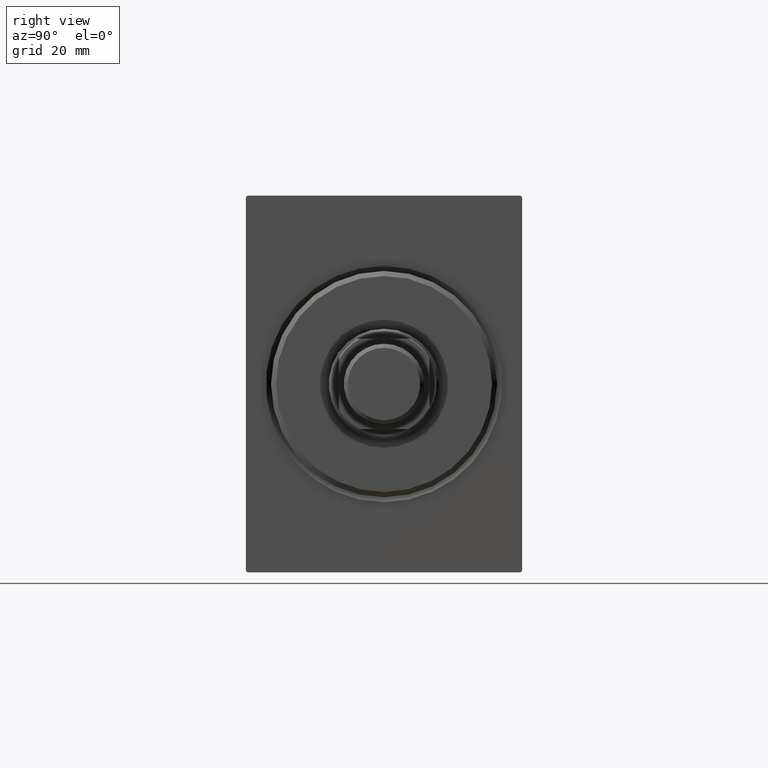
[diagram: clean part render]
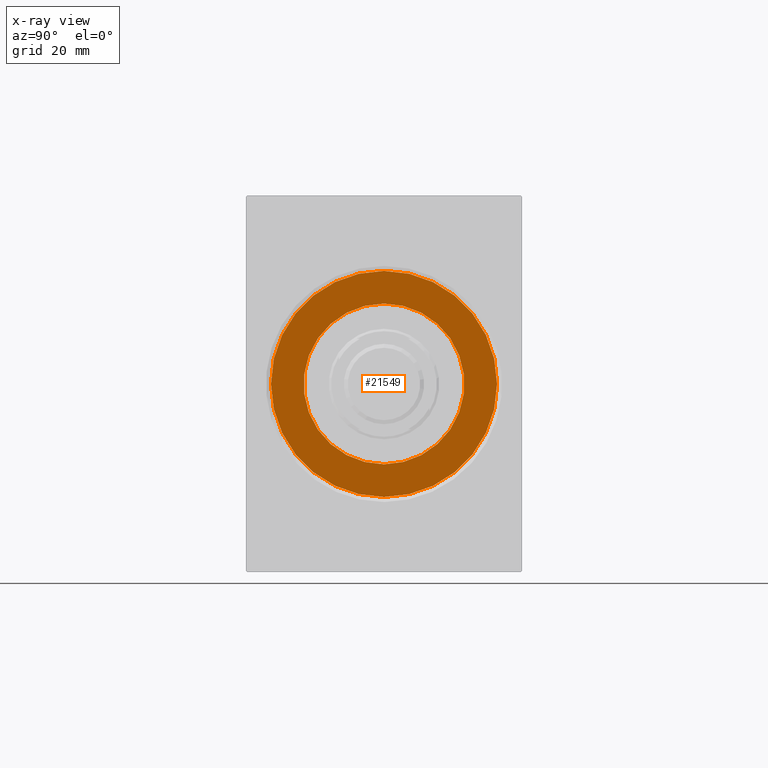
[diagram: x-ray — body ghosted, one internal face saturated and labeled with its STEP entity id]
A machine part, right view, then the same camera in x-ray: the body is ghosted and one INTERNAL B-rep face — a face not visible from any outside direction — is saturated and labeled: STEP entity #21549.
In plain terms, the highlighted planar face has unit normal (1, 0, -0).
Its self-contained STEP definition (entity closure, byte-faithful):
#820 = AXIS2_PLACEMENT_3D ( 'NONE', #10733, #17441, #20501 ) ;
#884 = CIRCLE ( 'NONE', #34071, 22.50000000000000355 ) ;
#966 = VERTEX_POINT ( 'NONE', #6529 ) ;
#2257 = DIRECTION ( 'NONE',  ( -1.000000000000000000, 0.000000000000000000, 0.000000000000000000 ) ) ;
#5884 = CIRCLE ( 'NONE', #25947, 16.00000000000000000 ) ;
#6529 = CARTESIAN_POINT ( 'NONE',  ( 4.999999999999997335, 1.959434878635765131E-15, -16.00000000000000000 ) ) ;
#7396 = ORIENTED_EDGE ( 'NONE', *, *, #30856, .T. ) ;
#8981 = CARTESIAN_POINT ( 'NONE',  ( 4.999999999999997335, 0.000000000000000000, 16.00000000000000000 ) ) ;
#9146 = DIRECTION ( 'NONE',  ( -1.000000000000000000, 0.000000000000000000, 0.000000000000000000 ) ) ;
#10733 = CARTESIAN_POINT ( 'NONE',  ( 5.000000000000000000, 0.000000000000000000, 0.000000000000000000 ) ) ;
#10889 = EDGE_LOOP ( 'NONE', ( #7396, #30539 ) ) ;
#11152 = EDGE_LOOP ( 'NONE', ( #20102, #42525 ) ) ;
#11970 = DIRECTION ( 'NONE',  ( 0.000000000000000000, 0.000000000000000000, 1.000000000000000000 ) ) ;
#15674 = CARTESIAN_POINT ( 'NONE',  ( 4.999999999999997335, 0.000000000000000000, 0.000000000000000000 ) ) ;
#17441 = DIRECTION ( 'NONE',  ( -1.000000000000000000, 0.000000000000000000, 0.000000000000000000 ) ) ;
#17625 = FACE_OUTER_BOUND ( 'NONE', #10889, .T. ) ;
#17844 = FACE_BOUND ( 'NONE', #11152, .T. ) ;
#18265 = DIRECTION ( 'NONE',  ( -1.000000000000000000, 0.000000000000000000, 0.000000000000000000 ) ) ;
#18745 = CARTESIAN_POINT ( 'NONE',  ( 5.000000000000000000, 0.000000000000000000, 0.000000000000000000 ) ) ;
#19534 = CIRCLE ( 'NONE', #820, 22.50000000000000355 ) ;
#20102 = ORIENTED_EDGE ( 'NONE', *, *, #25176, .F. ) ;
#20424 = CARTESIAN_POINT ( 'NONE',  ( 5.000000000000000000, 2.755455298081545172E-15, -22.50000000000000355 ) ) ;
#20501 = DIRECTION ( 'NONE',  ( 0.000000000000000000, 0.000000000000000000, 1.000000000000000000 ) ) ;
#20650 = AXIS2_PLACEMENT_3D ( 'NONE', #38246, #18265, #11970 ) ;
#21549 = ADVANCED_FACE ( 'NONE', ( #17844, #17625 ), #34763, .T. ) ;
#24257 = VERTEX_POINT ( 'NONE', #30749 ) ;
#24721 = VERTEX_POINT ( 'NONE', #8981 ) ;
#25176 = EDGE_CURVE ( 'NONE', #24721, #966, #40867, .T. ) ;
#25947 = AXIS2_PLACEMENT_3D ( 'NONE', #15674, #28926, #26083 ) ;
#26083 = DIRECTION ( 'NONE',  ( 0.000000000000000000, 0.000000000000000000, 1.000000000000000000 ) ) ;
#26957 = VERTEX_POINT ( 'NONE', #20424 ) ;
#28825 = EDGE_CURVE ( 'NONE', #26957, #24257, #19534, .T. ) ;
#28926 = DIRECTION ( 'NONE',  ( -1.000000000000000000, 0.000000000000000000, 0.000000000000000000 ) ) ;
#30539 = ORIENTED_EDGE ( 'NONE', *, *, #28825, .T. ) ;
#30749 = CARTESIAN_POINT ( 'NONE',  ( 5.000000000000000000, 0.000000000000000000, 22.50000000000000355 ) ) ;
#30856 = EDGE_CURVE ( 'NONE', #24257, #26957, #884, .T. ) ;
#32796 = DIRECTION ( 'NONE',  ( 0.000000000000000000, 0.000000000000000000, 1.000000000000000000 ) ) ;
#34071 = AXIS2_PLACEMENT_3D ( 'NONE', #18745, #2257, #38521 ) ;
#34763 = PLANE ( 'NONE',  #20650 ) ;
#35305 = AXIS2_PLACEMENT_3D ( 'NONE', #35413, #9146, #32796 ) ;
#35413 = CARTESIAN_POINT ( 'NONE',  ( 4.999999999999997335, 0.000000000000000000, 0.000000000000000000 ) ) ;
#38246 = CARTESIAN_POINT ( 'NONE',  ( 5.000000000000000000, 0.000000000000000000, 0.000000000000000000 ) ) ;
#38521 = DIRECTION ( 'NONE',  ( 0.000000000000000000, 0.000000000000000000, 1.000000000000000000 ) ) ;
#40122 = EDGE_CURVE ( 'NONE', #966, #24721, #5884, .T. ) ;
#40867 = CIRCLE ( 'NONE', #35305, 16.00000000000000000 ) ;
#42525 = ORIENTED_EDGE ( 'NONE', *, *, #40122, .F. ) ;